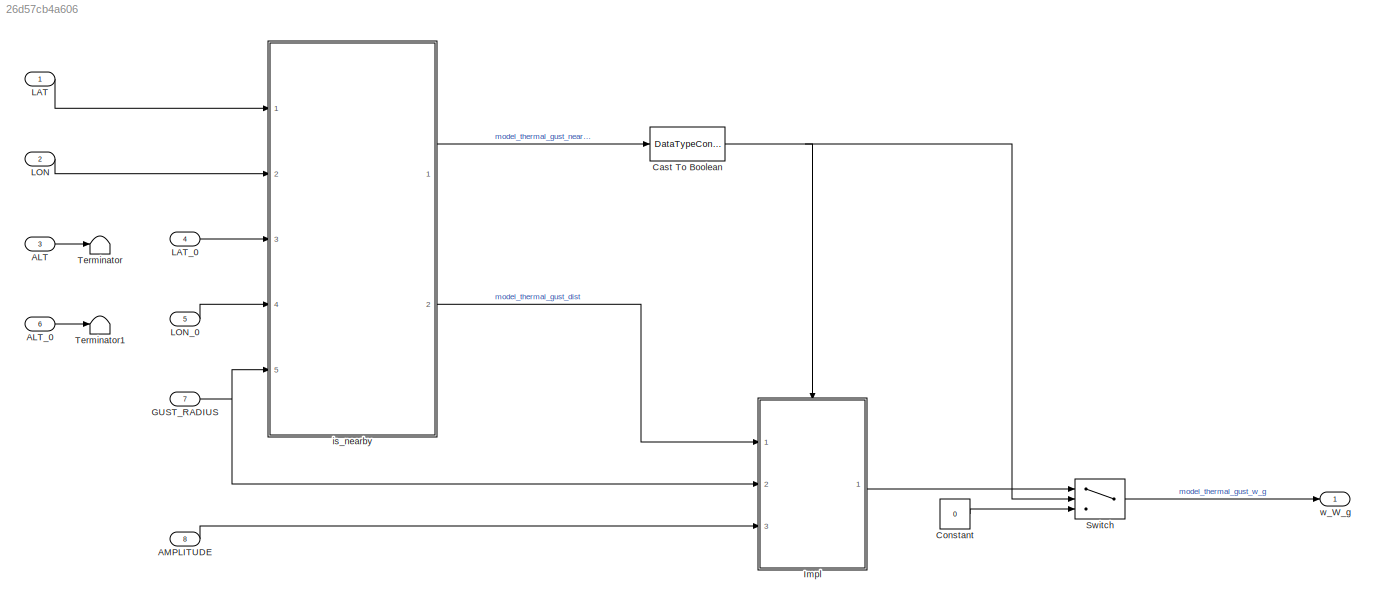
MODEL slx_26d57cb4a606
KIND model
BLOCK [Inport] ALT
  OutDataTypeStr = double
  Port = 3
BLOCK [Inport] ALT_0
  OutDataTypeStr = double
  Port = 6
BLOCK [Inport] AMPLITUDE
  OutDataTypeStr = double
  Port = 8
BLOCK [DataTypeConversion] Cast To Boolean
  OutDataTypeStr = boolean
  RndMeth = Floor
  SaturateOnIntegerOverflow = off
BLOCK [Constant] Constant
  Value = 0
BLOCK [Inport] GUST_RADIUS
  OutDataTypeStr = double
  Port = 7
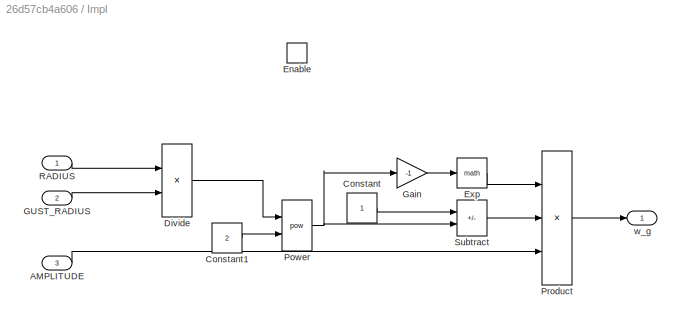
BLOCK [SubSystem] Impl
  Ports = [3, 1, 1]
  RequestExecContextInheritance = off
  TreatAsAtomicUnit = on
BLOCK [Inport] Impl/AMPLITUDE
  OutDataTypeStr = double
  Port = 3
BLOCK [Constant] Impl/Constant
BLOCK [Constant] Impl/Constant1
  Value = 2
BLOCK [Product] Impl/Divide
  Inputs = */
  Ports = [2, 1]
BLOCK [EnablePort] Impl/Enable
  Ports = []
BLOCK [Math] Impl/Exp
  Ports = [1, 1]
BLOCK [Inport] Impl/GUST_RADIUS
  OutDataTypeStr = double
  Port = 2
BLOCK [Gain] Impl/Gain
  Gain = -1
BLOCK [Math] Impl/Power
  Operator = pow
  Ports = [2, 1]
BLOCK [Product] Impl/Product
  Inputs = 3
  Ports = [3, 1]
BLOCK [Inport] Impl/RADIUS
  OutDataTypeStr = double
BLOCK [Sum] Impl/Subtract
  IconShape = rectangular
  Inputs = +-
  Ports = [2, 1]
BLOCK [Outport] Impl/w_g
  OutDataTypeStr = double
BLOCK [Inport] LAT
  OutDataTypeStr = double
BLOCK [Inport] LAT_0
  OutDataTypeStr = double
  Port = 4
BLOCK [Inport] LON
  OutDataTypeStr = double
  Port = 2
BLOCK [Inport] LON_0
  OutDataTypeStr = double
  Port = 5
BLOCK [Switch] Switch
  Criteria = u2 > Threshold
  InputSameDT = off
  SaturateOnIntegerOverflow = off
BLOCK [Terminator] Terminator
BLOCK [Terminator] Terminator1
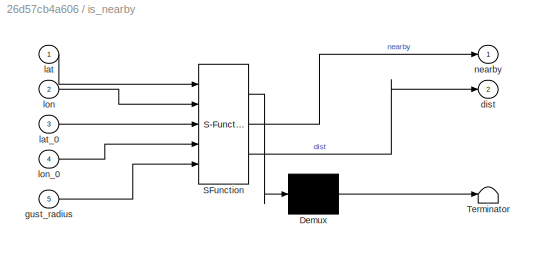
BLOCK [SubSystem] is_nearby
  ErrorFcn = Stateflow.Translate.translate
  PermitHierarchicalResolution = ExplicitOnly
  Ports = [5, 2]
  RequestExecContextInheritance = off
  SFBlockType = MATLAB Function
  TreatAsAtomicUnit = on
BLOCK [Demux] is_nearby/ Demux 
  Outputs = 1
  Ports = [1, 1]
BLOCK [S-Function] is_nearby/ SFunction 
  EnableBusSupport = on
  FunctionName = sf_sfun
  PortCounts = [5 3]
  Ports = [5, 3]
  SFcnIsStateOwnerBlock = off
  SFunctionDeploymentMode = off
  Tag = Stateflow S-Function 1
BLOCK [Terminator] is_nearby/ Terminator 
BLOCK [Outport] is_nearby/dist
  Port = 2
BLOCK [Inport] is_nearby/gust_radius
  Port = 5
BLOCK [Inport] is_nearby/lat
BLOCK [Inport] is_nearby/lat_0
  Port = 3
BLOCK [Inport] is_nearby/lon
  Port = 2
BLOCK [Inport] is_nearby/lon_0
  Port = 4
BLOCK [Outport] is_nearby/nearby
BLOCK [Outport] w_W_g
  OutDataTypeStr = double
  SignalName = w_W_g
LINE ALT:1 -> Terminator:1
LINE ALT_0:1 -> Terminator1:1
LINE AMPLITUDE:1 -> Impl:3
NET Cast To Boolean:1 -> Impl:enable, Switch:2
LINE Constant:1 -> Switch:3
NET GUST_RADIUS:1 -> Impl:2, is_nearby:5
LINE Impl/AMPLITUDE:1 -> Impl/Product:3
LINE Impl/Constant1:1 -> Impl/Power:2
LINE Impl/Constant:1 -> Impl/Subtract:1
LINE Impl/Divide:1 -> Impl/Power:1
LINE Impl/Exp:1 -> Impl/Product:1
LINE Impl/GUST_RADIUS:1 -> Impl/Divide:2
LINE Impl/Gain:1 -> Impl/Exp:1
NET Impl/Power:1 -> Impl/Gain:1, Impl/Subtract:2
LINE Impl/Product:1 -> Impl/w_g:1
LINE Impl/RADIUS:1 -> Impl/Divide:1
LINE Impl/Subtract:1 -> Impl/Product:2
LINE Impl:1 -> Switch:1
LINE LAT:1 -> is_nearby:1
LINE LAT_0:1 -> is_nearby:3
LINE LON:1 -> is_nearby:2
LINE LON_0:1 -> is_nearby:4
LINE Switch:1 -> w_W_g:1
LINE is_nearby:1 -> Cast To Boolean:1
LINE is_nearby:2 -> Impl:1
note: NET lines group one-source signal fan-out (src -> all destinations, sorted); 1:1 wires keep LINE
CHART is_nearby states=1 transitions=1
  STATE_LABEL 'eML_blk_kernel()'
  STATE_LABEL "SCRIPT:\n% model_thermal_gust\nfunction [nearby, dist] = is_nearby(lat, lon, lat_0, lon_0, gust_radius)\n    % Units:\n    % [lat] = rad\n    % [lon] = rad\n    % [lat_0] = rad\n    % [lon_0] = rad\n    % [height_0] = m\n    % [gust_width] = m\n    % Independet of altitude, phenomena is available on all heights, because otherwise height distribution is needed\n\n    % Option 1: doesn't support code gen\n    % ...<+1166ch>"
CHART  states=0 transitions=0
